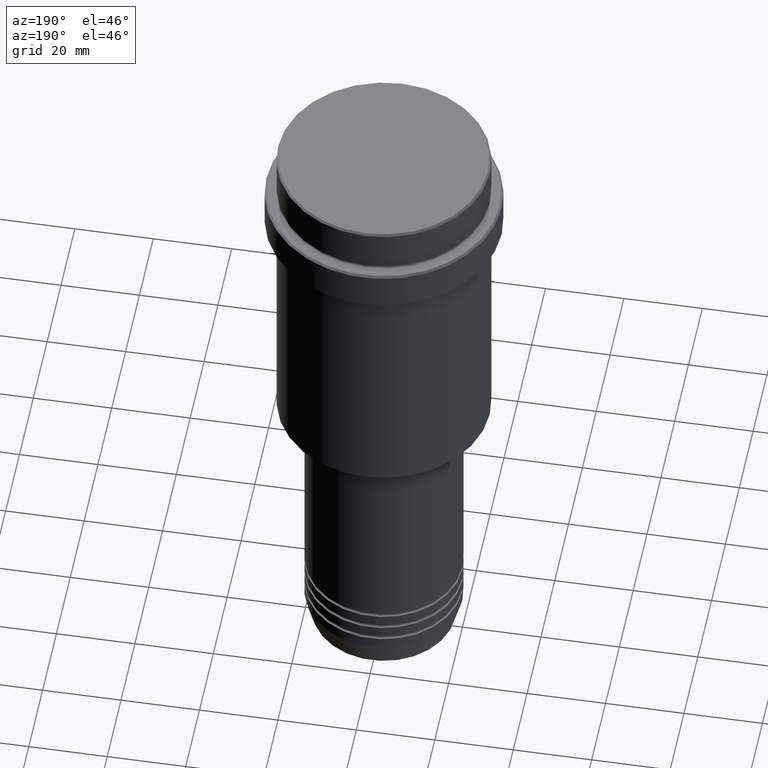
[diagram: clean part render]
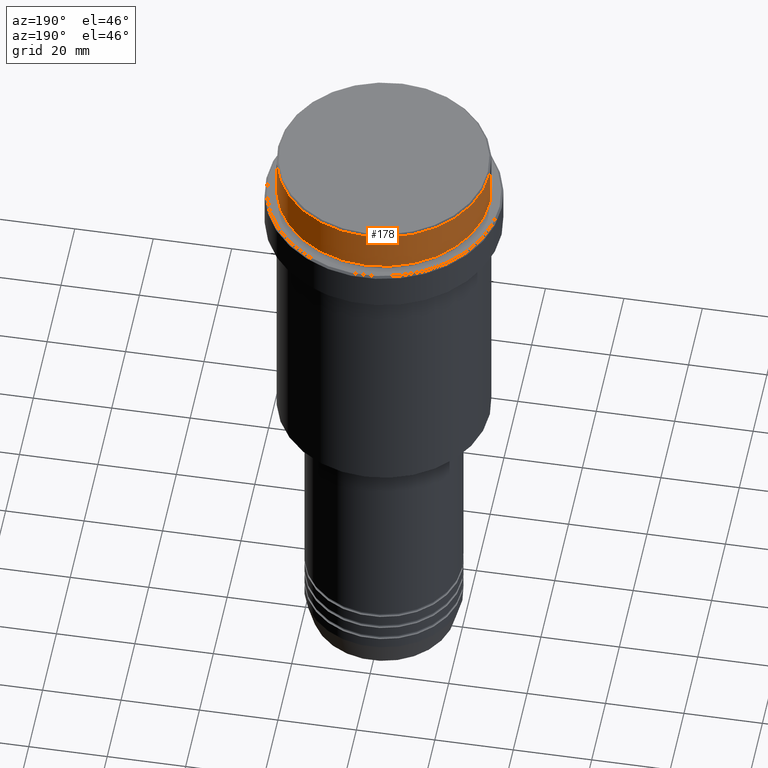
[diagram: same view with one face highlighted and labeled with its STEP entity id]
A machine part, auxiliary view. The second image highlights one B-rep face of the part: STEP entity #178.
In plain terms, the highlighted cylindrical surface (partial cylindrical patch) has radius 27 mm, axis along (-0, -0, 1).
Its self-contained STEP definition (entity closure, byte-faithful):
#25 = EDGE_CURVE ( 'NONE', #1138, #652, #889, .T. ) ;
#42 = CARTESIAN_POINT ( 'NONE',  ( -26.99999999999999645, 3.306546357697853339E-15, -0.4999999999999761302 ) ) ;
#47 = CYLINDRICAL_SURFACE ( 'NONE', #865, 26.99999999999999645 ) ;
#131 = CARTESIAN_POINT ( 'NONE',  ( 0.000000000000000000, 0.000000000000000000, -11.00000000000000178 ) ) ;
#178 = ADVANCED_FACE ( 'NONE', ( #689 ), #47, .T. ) ;
#187 = EDGE_CURVE ( 'NONE', #1138, #247, #1385, .T. ) ;
#247 = VERTEX_POINT ( 'NONE', #293 ) ;
#285 = AXIS2_PLACEMENT_3D ( 'NONE', #596, #1372, #299 ) ;
#293 = CARTESIAN_POINT ( 'NONE',  ( -26.99999999999999645, 3.306546357697853339E-15, -11.00000000000000178 ) ) ;
#299 = DIRECTION ( 'NONE',  ( 1.000000000000000000, 0.000000000000000000, 0.000000000000000000 ) ) ;
#443 = CARTESIAN_POINT ( 'NONE',  ( -26.99999999999999645, 3.306546357697853339E-15, 0.000000000000000000 ) ) ;
#581 = DIRECTION ( 'NONE',  ( 1.000000000000000000, 0.000000000000000000, 0.000000000000000000 ) ) ;
#596 = CARTESIAN_POINT ( 'NONE',  ( 0.000000000000000000, 0.000000000000000000, -0.4999999999999761302 ) ) ;
#647 = CARTESIAN_POINT ( 'NONE',  ( 26.99999999999999645, 0.000000000000000000, -11.00000000000000178 ) ) ;
#652 = VERTEX_POINT ( 'NONE', #1332 ) ;
#685 = CARTESIAN_POINT ( 'NONE',  ( 0.000000000000000000, 0.000000000000000000, 0.000000000000000000 ) ) ;
#689 = FACE_OUTER_BOUND ( 'NONE', #742, .T. ) ;
#705 = EDGE_CURVE ( 'NONE', #1053, #652, #945, .T. ) ;
#726 = ORIENTED_EDGE ( 'NONE', *, *, #705, .T. ) ;
#742 = EDGE_LOOP ( 'NONE', ( #828, #1252, #726, #1376 ) ) ;
#780 = DIRECTION ( 'NONE',  ( -0.000000000000000000, -0.000000000000000000, 1.000000000000000000 ) ) ;
#828 = ORIENTED_EDGE ( 'NONE', *, *, #187, .T. ) ;
#836 = VECTOR ( 'NONE', #780, 1000.000000000000000 ) ;
#865 = AXIS2_PLACEMENT_3D ( 'NONE', #685, #1024, #581 ) ;
#880 = DIRECTION ( 'NONE',  ( -0.000000000000000000, -0.000000000000000000, 1.000000000000000000 ) ) ;
#889 = LINE ( 'NONE', #1074, #836 ) ;
#945 = CIRCLE ( 'NONE', #285, 26.99999999999999645 ) ;
#1024 = DIRECTION ( 'NONE',  ( -0.000000000000000000, -0.000000000000000000, 1.000000000000000000 ) ) ;
#1053 = VERTEX_POINT ( 'NONE', #42 ) ;
#1074 = CARTESIAN_POINT ( 'NONE',  ( 26.99999999999999645, 0.000000000000000000, 0.000000000000000000 ) ) ;
#1106 = VECTOR ( 'NONE', #880, 1000.000000000000000 ) ;
#1138 = VERTEX_POINT ( 'NONE', #647 ) ;
#1212 = LINE ( 'NONE', #443, #1106 ) ;
#1223 = DIRECTION ( 'NONE',  ( -0.000000000000000000, -0.000000000000000000, 1.000000000000000000 ) ) ;
#1226 = DIRECTION ( 'NONE',  ( 1.000000000000000000, 0.000000000000000000, 0.000000000000000000 ) ) ;
#1252 = ORIENTED_EDGE ( 'NONE', *, *, #1283, .T. ) ;
#1283 = EDGE_CURVE ( 'NONE', #247, #1053, #1212, .T. ) ;
#1332 = CARTESIAN_POINT ( 'NONE',  ( 26.99999999999999645, 0.000000000000000000, -0.4999999999999761302 ) ) ;
#1359 = AXIS2_PLACEMENT_3D ( 'NONE', #131, #1223, #1226 ) ;
#1372 = DIRECTION ( 'NONE',  ( 0.000000000000000000, 0.000000000000000000, -1.000000000000000000 ) ) ;
#1376 = ORIENTED_EDGE ( 'NONE', *, *, #25, .F. ) ;
#1385 = CIRCLE ( 'NONE', #1359, 26.99999999999999645 ) ;